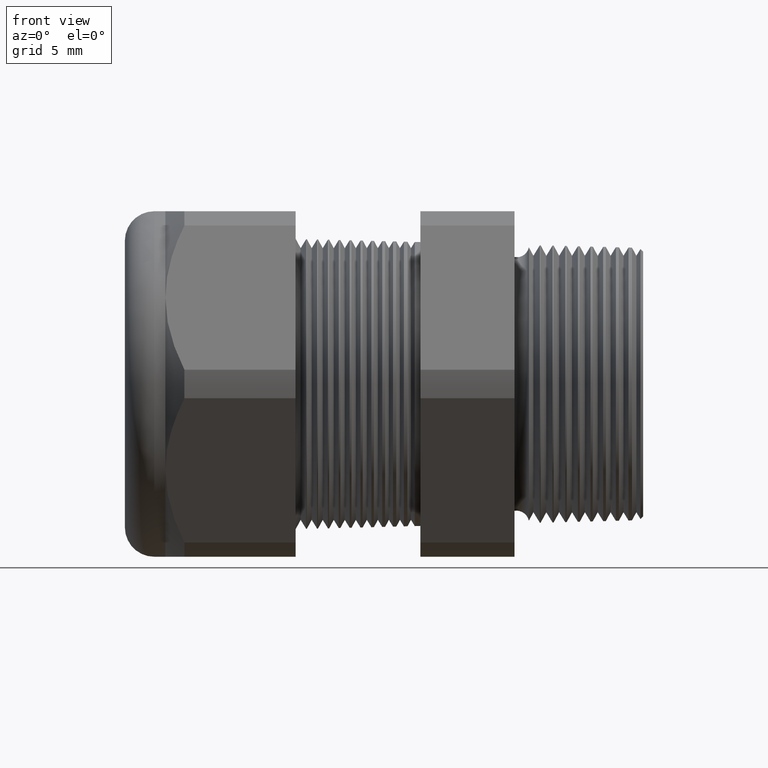
[diagram: clean part render]
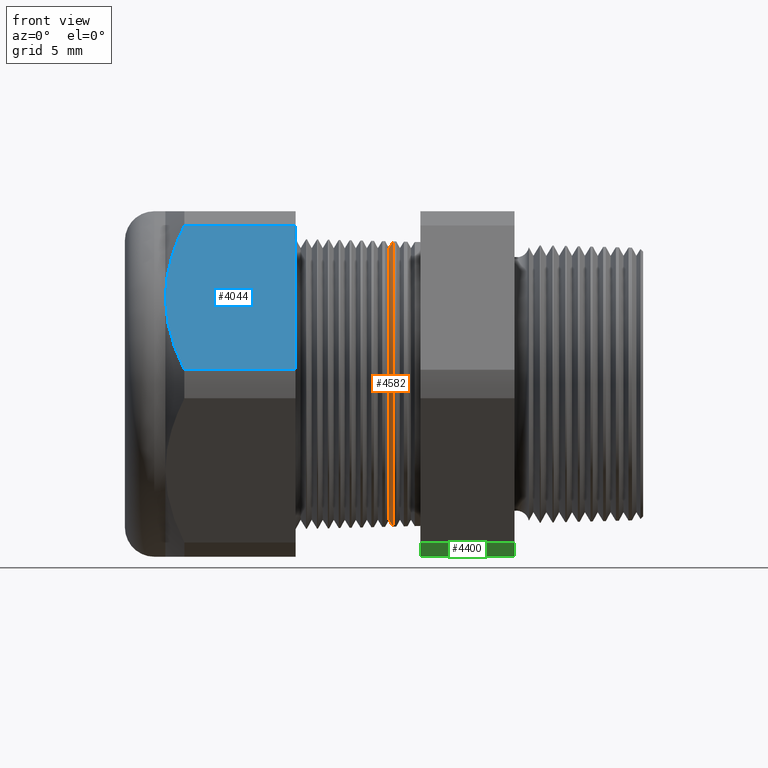
[diagram: same view with three faces highlighted in distinct colors, each labeled with its STEP entity id]
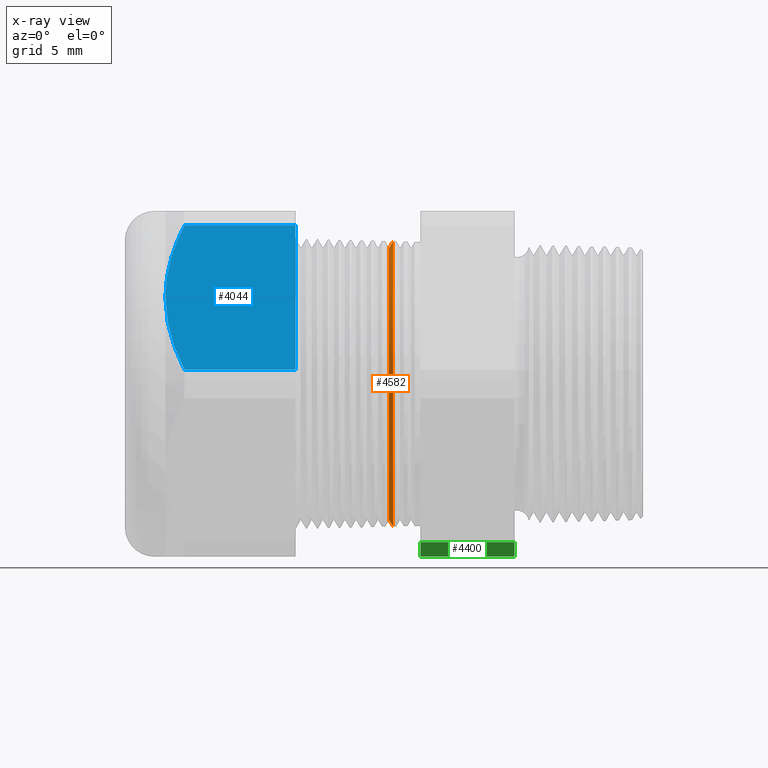
[diagram: x-ray of the same camera — body ghosted, the three highlighted faces saturated]
A machine part, front view with three faces highlighted in distinct colors.
The next image is the same camera in x-ray (body ghosted, the three faces saturated) — at least one of them is partly hidden behind the body in this view.
Their STEP definitions:

[orange] entity #4582 — the highlighted conical surface has half-angle 58.5 deg.
#15 = VERTEX_POINT ( 'NONE', #296 ) ;
#18 = VERTEX_POINT ( 'NONE', #290 ) ;
#25 = VERTEX_POINT ( 'NONE', #280 ) ;
#27 = EDGE_CURVE ( 'NONE', #15, #25, #279, .T. ) ;
#276 = DIRECTION ( 'NONE',  ( 0.5224985647159348100, 1.044183048100722500E-016, 0.8526401643541007300 ) ) ;
#277 = VECTOR ( 'NONE', #276, 39.37007874015748900 ) ;
#278 = CARTESIAN_POINT ( 'NONE',  ( -0.6516586839320377400, 4.526670966946381200E-017, 0.3696307351718083900 ) ) ;
#279 = LINE ( 'NONE', #278, #277 ) ;
#280 = CARTESIAN_POINT ( 'NONE',  ( -0.6403658468230107900, 0.0000000000000000000, 0.3880589704606464100 ) ) ;
#290 = CARTESIAN_POINT ( 'NONE',  ( -0.6516586839320377400, 4.642975682411349600E-017, -0.3696307351718083900 ) ) ;
#296 = CARTESIAN_POINT ( 'NONE',  ( -0.6516586839320377400, 0.0000000000000000000, 0.3696307351718083900 ) ) ;
#1506 = DIRECTION ( 'NONE',  ( 0.0000000000000000000, 0.0000000000000000000, -1.000000000000000000 ) ) ;
#1507 = DIRECTION ( 'NONE',  ( -1.000000000000000000, 0.0000000000000000000, 0.0000000000000000000 ) ) ;
#1508 = CARTESIAN_POINT ( 'NONE',  ( -0.6403658468230107900, 0.0000000000000000000, 0.0000000000000000000 ) ) ;
#1509 = AXIS2_PLACEMENT_3D ( 'NONE', #1508, #1507, #1506 ) ;
#1510 = CIRCLE ( 'NONE', #1509, 0.3880589704606463600 ) ;
#2589 = DIRECTION ( 'NONE',  ( 0.0000000000000000000, 0.0000000000000000000, -1.000000000000000000 ) ) ;
#2590 = DIRECTION ( 'NONE',  ( 1.000000000000000000, 0.0000000000000000000, 0.0000000000000000000 ) ) ;
#2591 = CARTESIAN_POINT ( 'NONE',  ( -0.6516586839320377400, 0.0000000000000000000, 0.0000000000000000000 ) ) ;
#2592 = AXIS2_PLACEMENT_3D ( 'NONE', #2591, #2590, #2589 ) ;
#2597 = CIRCLE ( 'NONE', #2592, 0.3696307351718083900 ) ;
#2642 = DIRECTION ( 'NONE',  ( 0.0000000000000000000, 0.0000000000000000000, -1.000000000000000000 ) ) ;
#2643 = DIRECTION ( 'NONE',  ( 1.000000000000000000, 0.0000000000000000000, 0.0000000000000000000 ) ) ;
#2644 = CARTESIAN_POINT ( 'NONE',  ( -0.6516586839320377400, 0.0000000000000000000, 0.0000000000000000000 ) ) ;
#2645 = AXIS2_PLACEMENT_3D ( 'NONE', #2644, #2643, #2642 ) ;
#2647 = CONICAL_SURFACE ( 'NONE', #2645, 0.3696307351718083900, 1.021017612416699200 ) ;
#2648 = FACE_OUTER_BOUND ( 'NONE', #4583, .T. ) ;
#2675 = CARTESIAN_POINT ( 'NONE',  ( -0.6403658468230107900, 4.752351760550479200E-017, -0.3880589704606464100 ) ) ;
#2683 = DIRECTION ( 'NONE',  ( 0.5224985647159348100, 0.0000000000000000000, -0.8526401643541007300 ) ) ;
#2684 = VECTOR ( 'NONE', #2683, 39.37007874015748900 ) ;
#2685 = CARTESIAN_POINT ( 'NONE',  ( -0.6516586839320377400, 0.0000000000000000000, -0.3696307351718083900 ) ) ;
#2686 = LINE ( 'NONE', #2685, #2684 ) ;
#3932 = EDGE_CURVE ( 'NONE', #4605, #25, #1510, .T. ) ;
#4528 = EDGE_CURVE ( 'NONE', #15, #18, #2597, .T. ) ;
#4582 = ADVANCED_FACE ( 'NONE', ( #2648 ), #2647, .T. ) ;
#4583 = EDGE_LOOP ( 'NONE', ( #4584, #4585, #4586, #4587 ) ) ;
#4584 = ORIENTED_EDGE ( 'NONE', *, *, #27, .F. ) ;
#4585 = ORIENTED_EDGE ( 'NONE', *, *, #4528, .T. ) ;
#4586 = ORIENTED_EDGE ( 'NONE', *, *, #4599, .T. ) ;
#4587 = ORIENTED_EDGE ( 'NONE', *, *, #3932, .T. ) ;
#4599 = EDGE_CURVE ( 'NONE', #18, #4605, #2686, .T. ) ;
#4605 = VERTEX_POINT ( 'NONE', #2675 ) ;

[blue] entity #4044 — the highlighted planar face has unit normal (0, -0.866, 0.5).
#1750 = DIRECTION ( 'NONE',  ( 0.0000000000000000000, -0.4999999999999998300, -0.8660254037844388200 ) ) ;
#1751 = DIRECTION ( 'NONE',  ( 0.0000000000000000000, -0.8660254037844388200, 0.4999999999999998300 ) ) ;
#1752 = CARTESIAN_POINT ( 'NONE',  ( 0.03999999999999984800, -0.5202473208008777700, 0.03890520787129467300 ) ) ;
#1753 = AXIS2_PLACEMENT_3D ( 'NONE', #1752, #1751, #1750 ) ;
#1754 = FACE_OUTER_BOUND ( 'NONE', #4045, .T. ) ;
#1759 = PLANE ( 'NONE',  #1753 ) ;
#1805 = CARTESIAN_POINT ( 'NONE',  ( -1.208063779527559300, -0.2938165587564945900, 0.4310947921287050500 ) ) ;
#1806 = CARTESIAN_POINT ( 'NONE',  ( -0.9054330708661418900, -0.2938165587564945900, 0.4310947921287050500 ) ) ;
#1807 = DIRECTION ( 'NONE',  ( -1.000000000000000000, 0.0000000000000000000, 0.0000000000000000000 ) ) ;
#1808 = VECTOR ( 'NONE', #1807, 39.37007874015748100 ) ;
#1809 = CARTESIAN_POINT ( 'NONE',  ( 0.03999999999999984800, -0.2938165587564945900, 0.4310947921287050500 ) ) ;
#1810 = LINE ( 'NONE', #1809, #1808 ) ;
#1905 = CARTESIAN_POINT ( 'NONE',  ( -1.259763779527559400, -0.4070319397786862900, 0.2349999999999999600 ) ) ;
#1906 = CARTESIAN_POINT ( 'NONE',  ( -0.9054330708661418900, -0.3082819397786862300, 0.4060400172474264400 ) ) ;
#1907 = LINE ( 'NONE', #1906, #1961 ) ;
#1908 = B_SPLINE_CURVE_WITH_KNOTS ( 'NONE', 3,
 ( #1905, #1966, #1965, #1964, #1963, #1962 ),
 .UNSPECIFIED., .F., .F.,
 ( 4, 2, 4 ),
 ( 0.005903107334592319400, 0.008852512982428785800, 0.01180191863026525300 ),
 .UNSPECIFIED. ) ;
#1909 = CARTESIAN_POINT ( 'NONE',  ( -1.259763779527559400, -0.4070319397786862900, 0.2349999999999999600 ) ) ;
#1910 = CARTESIAN_POINT ( 'NONE',  ( -1.259763779527559100, -0.4021312490570417300, 0.2434882453220694500 ) ) ;
#1911 = CARTESIAN_POINT ( 'NONE',  ( -1.259453644849874100, -0.3971857355050536500, 0.2520541260636330900 ) ) ;
#1912 = CARTESIAN_POINT ( 'NONE',  ( -1.258221849142435100, -0.3873598765596235100, 0.2690730129851234300 ) ) ;
#1913 = CARTESIAN_POINT ( 'NONE',  ( -1.257304216752656000, -0.3824845463488698600, 0.2775173326138241600 ) ) ;
#1914 = CARTESIAN_POINT ( 'NONE',  ( -1.253700751481475800, -0.3679645453500628400, 0.3026667120697089700 ) ) ;
#1915 = CARTESIAN_POINT ( 'NONE',  ( -1.250164085422761800, -0.3584258972266237700, 0.3191881352550267100 ) ) ;
#1916 = CARTESIAN_POINT ( 'NONE',  ( -1.236620445010038400, -0.3301755151959549500, 0.3681192322653761800 ) ) ;
#1917 = CARTESIAN_POINT ( 'NONE',  ( -1.223697825203295500, -0.3118271010418953700, 0.3998996178185234600 ) ) ;
#1918 = CARTESIAN_POINT ( 'NONE',  ( -1.208063779527559300, -0.2938165587564945900, 0.4310947921287050500 ) ) ;
#1919 = B_SPLINE_CURVE_WITH_KNOTS ( 'NONE', 3,
 ( #1918, #1917, #1916, #1915, #1914, #1913, #1912, #1911, #1910, #1909 ),
 .UNSPECIFIED., .F., .F.,
 ( 4, 2, 2, 2, 4 ),
 ( 2.483251536690325700E-007, 0.002951677829872993400, 0.004427392582232659300, 0.005165249958412489400, 0.005903107334592319400 ),
 .UNSPECIFIED. ) ;
#1930 = CARTESIAN_POINT ( 'NONE',  ( -1.259763779527559400, -0.4070319397786862900, 0.2349999999999999600 ) ) ;
#1942 = CARTESIAN_POINT ( 'NONE',  ( -1.208063779527559100, -0.5202473208008777700, 0.03890520787129464500 ) ) ;
#1943 = CARTESIAN_POINT ( 'NONE',  ( -0.9054330708661418900, -0.5202473208008777700, 0.03890520787129464500 ) ) ;
#1944 = DIRECTION ( 'NONE',  ( -1.000000000000000000, 0.0000000000000000000, 0.0000000000000000000 ) ) ;
#1945 = VECTOR ( 'NONE', #1944, 39.37007874015748100 ) ;
#1946 = CARTESIAN_POINT ( 'NONE',  ( 0.03999999999999984800, -0.5202473208008777700, 0.03890520787129464500 ) ) ;
#1947 = LINE ( 'NONE', #1946, #1945 ) ;
#1960 = DIRECTION ( 'NONE',  ( 0.0000000000000000000, -0.4999999999999998300, -0.8660254037844388200 ) ) ;
#1961 = VECTOR ( 'NONE', #1960, 39.37007874015748100 ) ;
#1962 = CARTESIAN_POINT ( 'NONE',  ( -1.208063779527559100, -0.5202473208008777700, 0.03890520787129464500 ) ) ;
#1963 = CARTESIAN_POINT ( 'NONE',  ( -1.223717189021966700, -0.5022144712456754200, 0.07013901950615096500 ) ) ;
#1964 = CARTESIAN_POINT ( 'NONE',  ( -1.236822062588142500, -0.4835762490957483700, 0.1024213672325803200 ) ) ;
#1965 = CARTESIAN_POINT ( 'NONE',  ( -1.254818111347315100, -0.4458197490082083700, 0.1678175437001784300 ) ) ;
#1966 = CARTESIAN_POINT ( 'NONE',  ( -1.259763779527558700, -0.4266212606411438600, 0.2010703009804539800 ) ) ;
#4044 = ADVANCED_FACE ( 'NONE', ( #1754 ), #1759, .T. ) ;
#4045 = EDGE_LOOP ( 'NONE', ( #4046, #4103, #4106, #4108, #4109 ) ) ;
#4046 = ORIENTED_EDGE ( 'NONE', *, *, #4047, .T. ) ;
#4047 = EDGE_CURVE ( 'NONE', #4048, #4049, #1810, .T. ) ;
#4048 = VERTEX_POINT ( 'NONE', #1806 ) ;
#4049 = VERTEX_POINT ( 'NONE', #1805 ) ;
#4103 = ORIENTED_EDGE ( 'NONE', *, *, #4104, .T. ) ;
#4104 = EDGE_CURVE ( 'NONE', #4049, #4105, #1919, .T. ) ;
#4105 = VERTEX_POINT ( 'NONE', #1930 ) ;
#4106 = ORIENTED_EDGE ( 'NONE', *, *, #4107, .T. ) ;
#4107 = EDGE_CURVE ( 'NONE', #4105, #4120, #1908, .T. ) ;
#4108 = ORIENTED_EDGE ( 'NONE', *, *, #4118, .F. ) ;
#4109 = ORIENTED_EDGE ( 'NONE', *, *, #4110, .F. ) ;
#4110 = EDGE_CURVE ( 'NONE', #4048, #4119, #1907, .T. ) ;
#4118 = EDGE_CURVE ( 'NONE', #4119, #4120, #1947, .T. ) ;
#4119 = VERTEX_POINT ( 'NONE', #1943 ) ;
#4120 = VERTEX_POINT ( 'NONE', #1942 ) ;

[green] entity #4400 — the highlighted cylindrical surface (partial cylindrical patch) has radius 13.2512 mm, axis along (-1, 0, 0).
#2061 = DIRECTION ( 'NONE',  ( 0.0000000000000000000, 0.0000000000000000000, -1.000000000000000000 ) ) ;
#2062 = DIRECTION ( 'NONE',  ( 1.000000000000000000, 0.0000000000000000000, 0.0000000000000000000 ) ) ;
#2063 = CARTESIAN_POINT ( 'NONE',  ( -0.3100000000000000000, 0.0000000000000000000, 0.0000000000000000000 ) ) ;
#2064 = AXIS2_PLACEMENT_3D ( 'NONE', #2063, #2062, #2061 ) ;
#2065 = CIRCLE ( 'NONE', #2064, 0.5217000000000000500 ) ;
#2140 = CARTESIAN_POINT ( 'NONE',  ( -0.3100000000000000000, -0.2264307620443830900, -0.4700000000000000300 ) ) ;
#2141 = CARTESIAN_POINT ( 'NONE',  ( -0.3100000000000000000, -0.2938165587564942600, -0.4310947921287053300 ) ) ;
#2236 = CARTESIAN_POINT ( 'NONE',  ( -0.5659055118110235500, -0.2938165587564942600, -0.4310947921287053300 ) ) ;
#2237 = DIRECTION ( 'NONE',  ( 0.0000000000000000000, 0.0000000000000000000, 1.000000000000000000 ) ) ;
#2238 = DIRECTION ( 'NONE',  ( -1.000000000000000000, 0.0000000000000000000, 0.0000000000000000000 ) ) ;
#2239 = CARTESIAN_POINT ( 'NONE',  ( -0.5659055118110235500, 0.0000000000000000000, 0.0000000000000000000 ) ) ;
#2240 = AXIS2_PLACEMENT_3D ( 'NONE', #2239, #2238, #2237 ) ;
#2241 = CIRCLE ( 'NONE', #2240, 0.5217000000000000500 ) ;
#2242 = CARTESIAN_POINT ( 'NONE',  ( -0.5659055118110235500, -0.2264307620443830900, -0.4700000000000000300 ) ) ;
#2426 = DIRECTION ( 'NONE',  ( -1.000000000000000000, 0.0000000000000000000, 0.0000000000000000000 ) ) ;
#2427 = VECTOR ( 'NONE', #2426, 39.37007874015748100 ) ;
#2428 = CARTESIAN_POINT ( 'NONE',  ( 0.03999999999999984800, -0.2264307620443830900, -0.4700000000000000300 ) ) ;
#2429 = DIRECTION ( 'NONE',  ( 0.0000000000000000000, 0.0000000000000000000, 1.000000000000000000 ) ) ;
#2430 = DIRECTION ( 'NONE',  ( -1.000000000000000000, 0.0000000000000000000, 0.0000000000000000000 ) ) ;
#2431 = CARTESIAN_POINT ( 'NONE',  ( 0.03999999999999984800, 0.0000000000000000000, 0.0000000000000000000 ) ) ;
#2432 = AXIS2_PLACEMENT_3D ( 'NONE', #2431, #2430, #2429 ) ;
#2433 = CYLINDRICAL_SURFACE ( 'NONE', #2432, 0.5217000000000000500 ) ;
#2434 = LINE ( 'NONE', #2428, #2427 ) ;
#2435 = FACE_OUTER_BOUND ( 'NONE', #4401, .T. ) ;
#2436 = DIRECTION ( 'NONE',  ( -1.000000000000000000, 0.0000000000000000000, 0.0000000000000000000 ) ) ;
#2437 = VECTOR ( 'NONE', #2436, 39.37007874015748100 ) ;
#2438 = CARTESIAN_POINT ( 'NONE',  ( 0.03999999999999984800, -0.2938165587564942600, -0.4310947921287053300 ) ) ;
#2439 = LINE ( 'NONE', #2438, #2437 ) ;
#4174 = EDGE_CURVE ( 'NONE', #4199, #4200, #2065, .T. ) ;
#4199 = VERTEX_POINT ( 'NONE', #2141 ) ;
#4200 = VERTEX_POINT ( 'NONE', #2140 ) ;
#4254 = VERTEX_POINT ( 'NONE', #2242 ) ;
#4256 = EDGE_CURVE ( 'NONE', #4254, #4257, #2241, .T. ) ;
#4257 = VERTEX_POINT ( 'NONE', #2236 ) ;
#4398 = EDGE_CURVE ( 'NONE', #4199, #4257, #2439, .T. ) ;
#4400 = ADVANCED_FACE ( 'NONE', ( #2435 ), #2433, .T. ) ;
#4401 = EDGE_LOOP ( 'NONE', ( #4402, #4403, #4404, #4406 ) ) ;
#4402 = ORIENTED_EDGE ( 'NONE', *, *, #4398, .T. ) ;
#4403 = ORIENTED_EDGE ( 'NONE', *, *, #4256, .F. ) ;
#4404 = ORIENTED_EDGE ( 'NONE', *, *, #4405, .F. ) ;
#4405 = EDGE_CURVE ( 'NONE', #4200, #4254, #2434, .T. ) ;
#4406 = ORIENTED_EDGE ( 'NONE', *, *, #4174, .F. ) ;